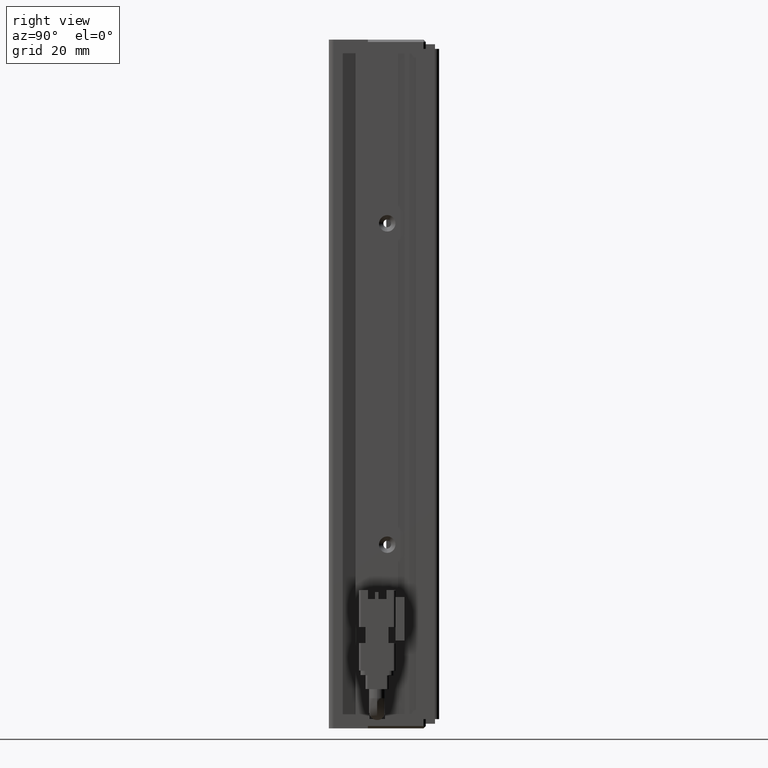
[diagram: clean part render]
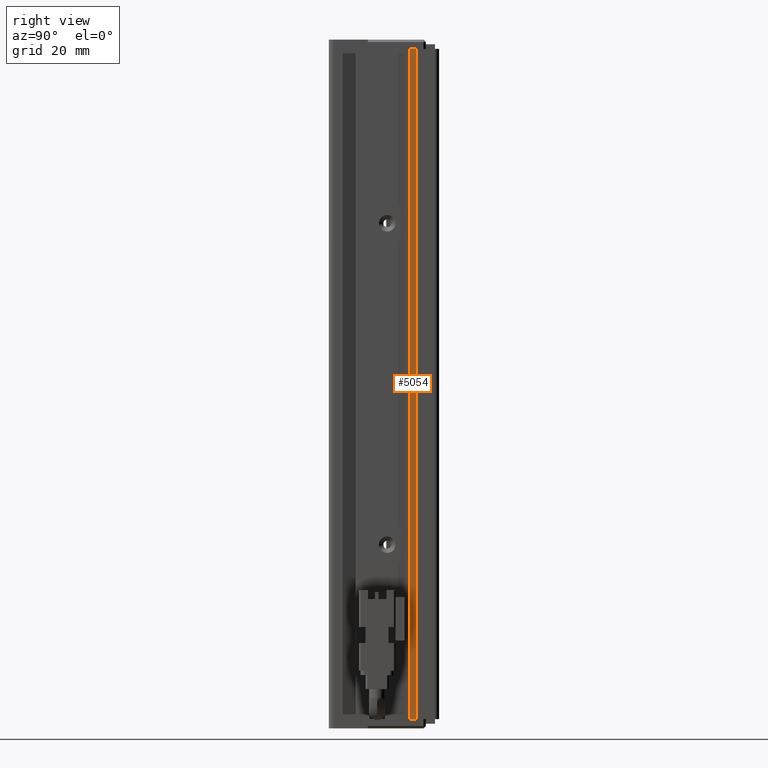
[diagram: same view with one face highlighted and labeled with its STEP entity id]
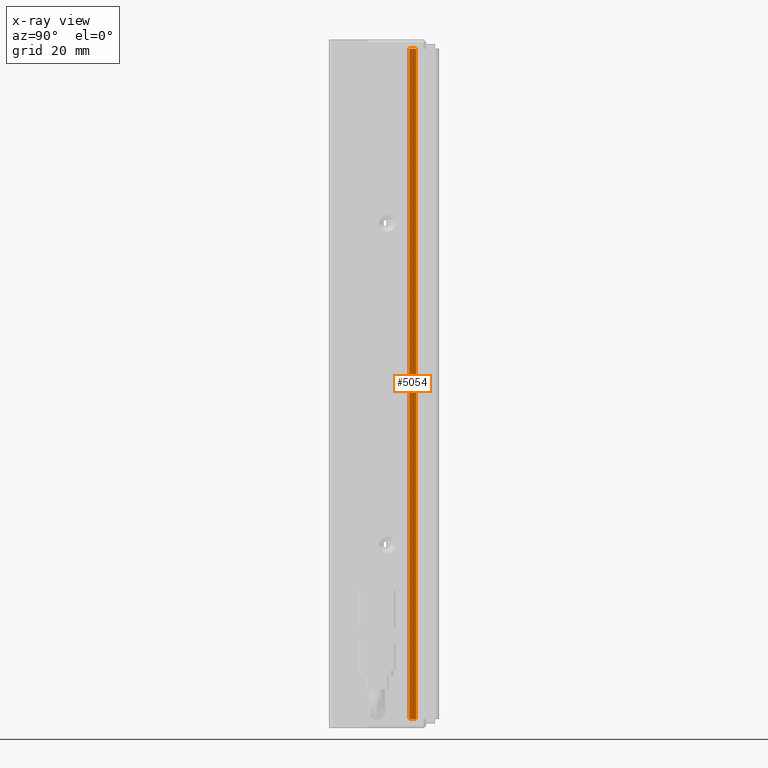
[diagram: x-ray of the same camera — body ghosted, the highlighted face saturated]
A machine part, right view. The second image highlights one B-rep face of the part: STEP entity #5054.
The next image is the same camera in x-ray: the body ghosted, the highlighted face saturated — about 0% of this face is hidden behind the body in this view.
In plain terms, the highlighted planar face has unit normal (1, 0, -0).
Its self-contained STEP definition (entity closure, byte-faithful):
#31 = LINE ( 'NONE', #41788, #18846 ) ;
#2994 = EDGE_CURVE ( 'NONE', #35828, #9334, #25204, .T. ) ;
#3905 = EDGE_LOOP ( 'NONE', ( #21101, #33376, #28906, #30515 ) ) ;
#4436 = VERTEX_POINT ( 'NONE', #6230 ) ;
#4466 = VECTOR ( 'NONE', #19828, 1000.000000000000000 ) ;
#5054 = ADVANCED_FACE ( 'NONE', ( #29917 ), #22551, .T. ) ;
#6230 = CARTESIAN_POINT ( 'NONE',  ( 50.92537974683541800, 29.99073232304837000, -42.00000000000000700 ) ) ;
#9048 = DIRECTION ( 'NONE',  ( -0.0000000000000000000, 0.0000000000000000000, -1.000000000000000000 ) ) ;
#9249 = EDGE_CURVE ( 'NONE', #10918, #35828, #31, .T. ) ;
#9334 = VERTEX_POINT ( 'NONE', #14569 ) ;
#10918 = VERTEX_POINT ( 'NONE', #29143 ) ;
#11214 = DIRECTION ( 'NONE',  ( 0.0000000000000000000, -0.0000000000000000000, -1.000000000000000000 ) ) ;
#13512 = VECTOR ( 'NONE', #15868, 1000.000000000000000 ) ;
#13842 = EDGE_CURVE ( 'NONE', #4436, #10918, #31376, .T. ) ;
#14569 = CARTESIAN_POINT ( 'NONE',  ( 50.92537974683541800, 29.99073232304837000, -188.0000000000000000 ) ) ;
#15868 = DIRECTION ( 'NONE',  ( 0.0000000000000000000, 1.000000000000000000, 0.0000000000000000000 ) ) ;
#17731 = CARTESIAN_POINT ( 'NONE',  ( 50.92537974683541800, 29.99073232304837000, -40.00000000000000700 ) ) ;
#18532 = VECTOR ( 'NONE', #11214, 1000.000000000000000 ) ;
#18846 = VECTOR ( 'NONE', #9048, 1000.000000000000000 ) ;
#19828 = DIRECTION ( 'NONE',  ( -0.0000000000000000000, -1.000000000000000000, -0.0000000000000000000 ) ) ;
#21101 = ORIENTED_EDGE ( 'NONE', *, *, #2994, .T. ) ;
#22551 = PLANE ( 'NONE',  #41719 ) ;
#25204 = LINE ( 'NONE', #25658, #13512 ) ;
#25658 = CARTESIAN_POINT ( 'NONE',  ( 50.92537974683541800, 7.083797468354437600, -188.0000000000000000 ) ) ;
#27152 = LINE ( 'NONE', #17731, #18532 ) ;
#28906 = ORIENTED_EDGE ( 'NONE', *, *, #13842, .T. ) ;
#29143 = CARTESIAN_POINT ( 'NONE',  ( 50.92537974683541800, 28.49073232304836600, -42.00000000000000700 ) ) ;
#29917 = FACE_OUTER_BOUND ( 'NONE', #3905, .T. ) ;
#30515 = ORIENTED_EDGE ( 'NONE', *, *, #9249, .T. ) ;
#31376 = LINE ( 'NONE', #39367, #4466 ) ;
#32485 = DIRECTION ( 'NONE',  ( 1.000000000000000000, 0.0000000000000000000, -0.0000000000000000000 ) ) ;
#33376 = ORIENTED_EDGE ( 'NONE', *, *, #37826, .F. ) ;
#35776 = DIRECTION ( 'NONE',  ( -0.0000000000000000000, 0.0000000000000000000, -1.000000000000000000 ) ) ;
#35828 = VERTEX_POINT ( 'NONE', #36738 ) ;
#35915 = CARTESIAN_POINT ( 'NONE',  ( 50.92537974683541800, 7.083797468354437600, -40.00000000000000700 ) ) ;
#36738 = CARTESIAN_POINT ( 'NONE',  ( 50.92537974683541800, 28.49073232304836600, -188.0000000000000000 ) ) ;
#37826 = EDGE_CURVE ( 'NONE', #4436, #9334, #27152, .T. ) ;
#39367 = CARTESIAN_POINT ( 'NONE',  ( 50.92537974683541800, 7.083797468354437600, -42.00000000000000700 ) ) ;
#41719 = AXIS2_PLACEMENT_3D ( 'NONE', #35915, #32485, #35776 ) ;
#41788 = CARTESIAN_POINT ( 'NONE',  ( 50.92537974683541800, 28.49073232304836600, -40.00000000000000700 ) ) ;